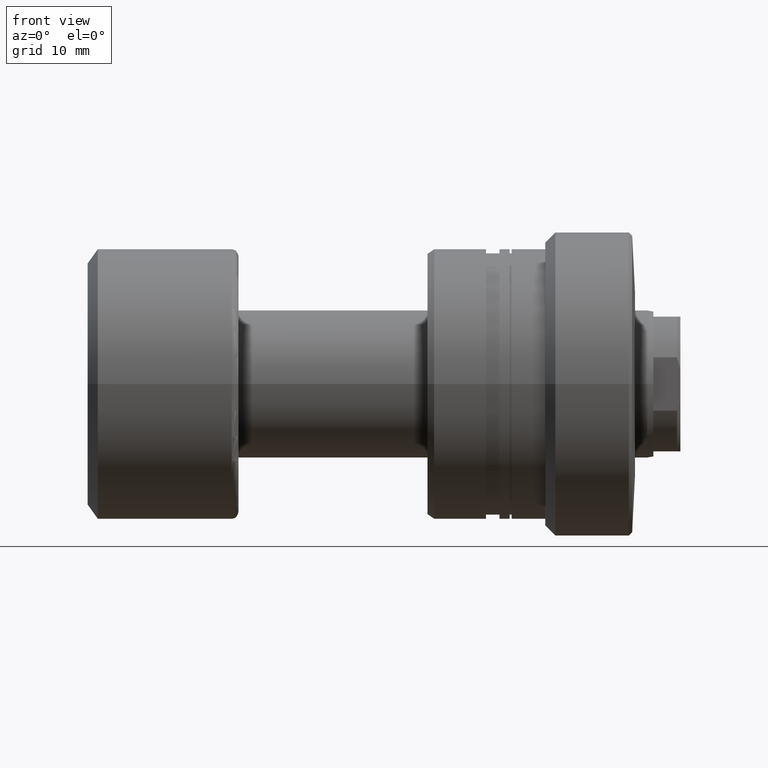
[diagram: clean part render]
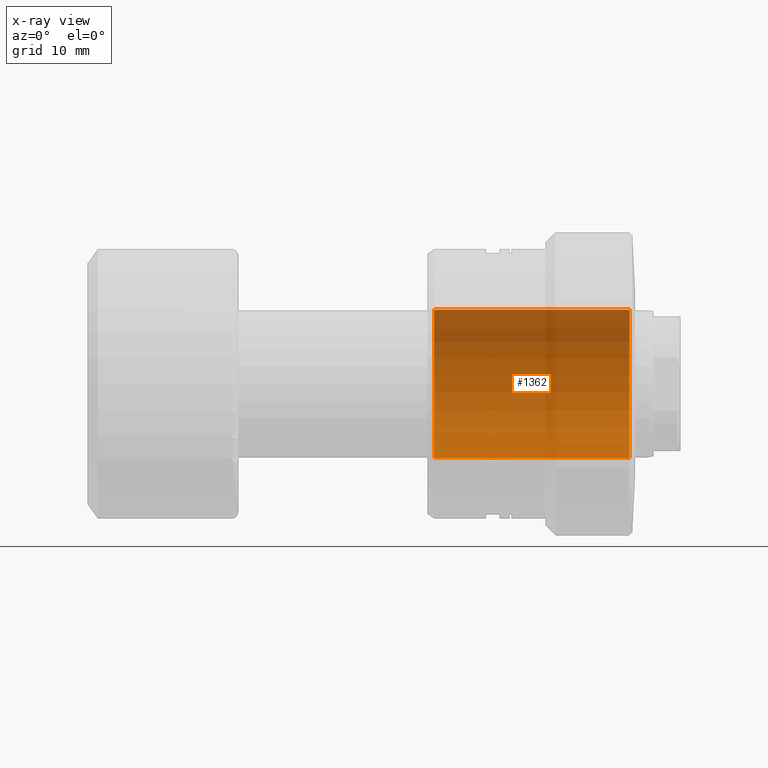
[diagram: x-ray — body ghosted, one internal face saturated and labeled with its STEP entity id]
A machine part, front view, then the same camera in x-ray: the body is ghosted and one INTERNAL B-rep face — a face not visible from any outside direction — is saturated and labeled: STEP entity #1362.
In plain terms, the highlighted cylindrical surface (partial cylindrical patch) has radius 11 mm, axis along (1, 0, 0).
Its self-contained STEP definition (entity closure, byte-faithful):
#11 = CARTESIAN_POINT ( 'NONE',  ( -62.61269837220812207, 1.347111479062088405E-15, 11.00000000000000000 ) ) ;
#23 = CIRCLE ( 'NONE', #1608, 11.00000000000000000 ) ;
#60 = EDGE_CURVE ( 'NONE', #1846, #1994, #1856, .T. ) ;
#100 = DIRECTION ( 'NONE',  ( 1.000000000000000000, -0.000000000000000000, -0.000000000000000000 ) ) ;
#155 = ORIENTED_EDGE ( 'NONE', *, *, #1889, .T. ) ;
#172 = DIRECTION ( 'NONE',  ( 1.000000000000000000, -0.000000000000000000, -0.000000000000000000 ) ) ;
#225 = AXIS2_PLACEMENT_3D ( 'NONE', #918, #2246, #314 ) ;
#314 = DIRECTION ( 'NONE',  ( 0.000000000000000000, 0.000000000000000000, -1.000000000000000000 ) ) ;
#319 = CARTESIAN_POINT ( 'NONE',  ( -30.50000000000002132, 0.000000000000000000, 0.000000000000000000 ) ) ;
#400 = CARTESIAN_POINT ( 'NONE',  ( -1.500000000000000000, 0.000000000000000000, -11.00000000000000000 ) ) ;
#472 = FACE_OUTER_BOUND ( 'NONE', #2073, .T. ) ;
#631 = VERTEX_POINT ( 'NONE', #1911 ) ;
#663 = ORIENTED_EDGE ( 'NONE', *, *, #60, .F. ) ;
#727 = DIRECTION ( 'NONE',  ( 1.000000000000000000, -0.000000000000000000, -0.000000000000000000 ) ) ;
#766 = EDGE_CURVE ( 'NONE', #1846, #631, #23, .T. ) ;
#837 = ORIENTED_EDGE ( 'NONE', *, *, #1571, .T. ) ;
#891 = DIRECTION ( 'NONE',  ( 0.000000000000000000, 0.000000000000000000, -1.000000000000000000 ) ) ;
#918 = CARTESIAN_POINT ( 'NONE',  ( -1.500000000000000000, 0.000000000000000000, 0.000000000000000000 ) ) ;
#944 = CARTESIAN_POINT ( 'NONE',  ( -62.61269837220812207, 0.000000000000000000, -11.00000000000000000 ) ) ;
#1101 = VECTOR ( 'NONE', #727, 1000.000000000000000 ) ;
#1217 = CIRCLE ( 'NONE', #225, 11.00000000000000000 ) ;
#1362 = ADVANCED_FACE ( 'NONE', ( #472 ), #1796, .F. ) ;
#1571 = EDGE_CURVE ( 'NONE', #2164, #1994, #1217, .T. ) ;
#1608 = AXIS2_PLACEMENT_3D ( 'NONE', #319, #2002, #1976 ) ;
#1717 = ORIENTED_EDGE ( 'NONE', *, *, #766, .T. ) ;
#1751 = VECTOR ( 'NONE', #172, 1000.000000000000000 ) ;
#1796 = CYLINDRICAL_SURFACE ( 'NONE', #2192, 11.00000000000000000 ) ;
#1846 = VERTEX_POINT ( 'NONE', #2113 ) ;
#1856 = LINE ( 'NONE', #11, #1751 ) ;
#1889 = EDGE_CURVE ( 'NONE', #631, #2164, #2018, .T. ) ;
#1911 = CARTESIAN_POINT ( 'NONE',  ( -30.50000000000002132, 0.000000000000000000, -11.00000000000000000 ) ) ;
#1976 = DIRECTION ( 'NONE',  ( 0.000000000000000000, 0.000000000000000000, -1.000000000000000000 ) ) ;
#1994 = VERTEX_POINT ( 'NONE', #2397 ) ;
#2002 = DIRECTION ( 'NONE',  ( -1.000000000000000000, 0.000000000000000000, 0.000000000000000000 ) ) ;
#2018 = LINE ( 'NONE', #944, #1101 ) ;
#2073 = EDGE_LOOP ( 'NONE', ( #663, #1717, #155, #837 ) ) ;
#2113 = CARTESIAN_POINT ( 'NONE',  ( -30.50000000000002132, 1.347111479062088405E-15, 11.00000000000000000 ) ) ;
#2164 = VERTEX_POINT ( 'NONE', #400 ) ;
#2192 = AXIS2_PLACEMENT_3D ( 'NONE', #2367, #100, #891 ) ;
#2246 = DIRECTION ( 'NONE',  ( 1.000000000000000000, 0.000000000000000000, 0.000000000000000000 ) ) ;
#2367 = CARTESIAN_POINT ( 'NONE',  ( -62.61269837220812207, 0.000000000000000000, 0.000000000000000000 ) ) ;
#2397 = CARTESIAN_POINT ( 'NONE',  ( -1.500000000000000000, 1.347111479062088405E-15, 11.00000000000000000 ) ) ;